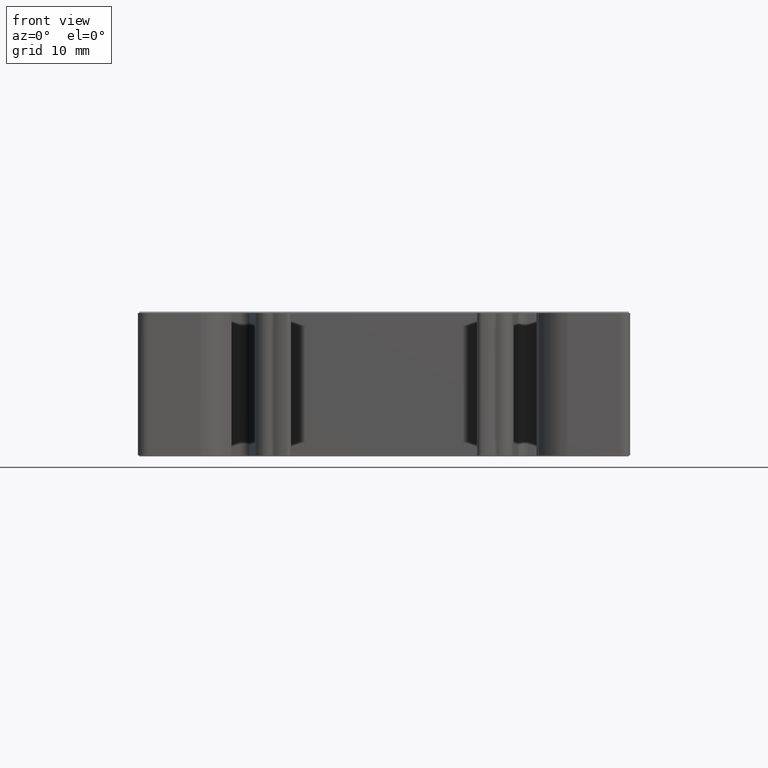
[diagram: clean part render]
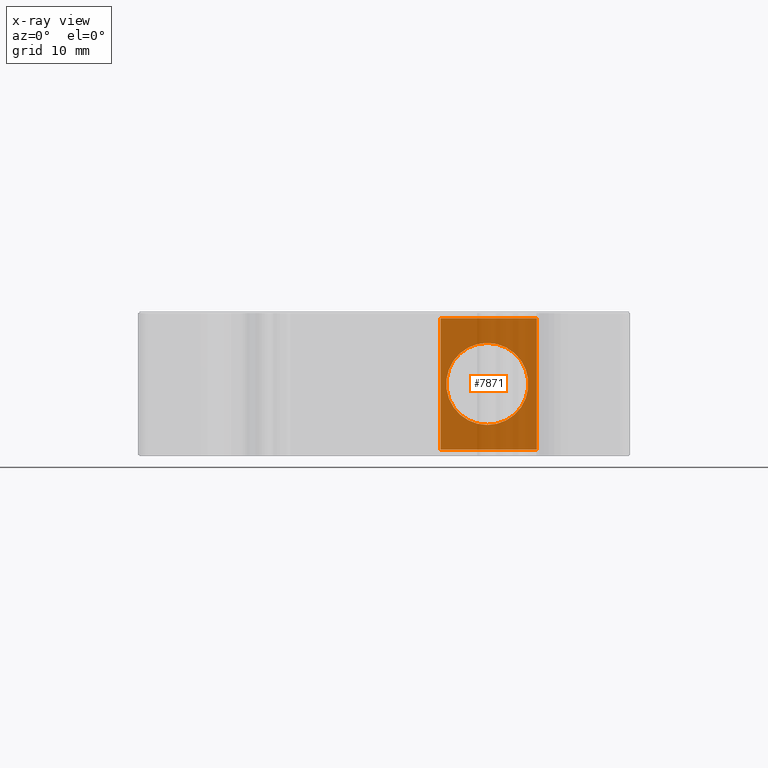
[diagram: x-ray — body ghosted, one internal face saturated and labeled with its STEP entity id]
A machine part, front view, then the same camera in x-ray: the body is ghosted and one INTERNAL B-rep face — a face not visible from any outside direction — is saturated and labeled: STEP entity #7871.
In plain terms, the highlighted planar face has unit normal (0, 1, -0).
Its self-contained STEP definition (entity closure, byte-faithful):
#430 = ORIENTED_EDGE ( 'NONE', *, *, #20068, .F. ) ;
#451 = ORIENTED_EDGE ( 'NONE', *, *, #20116, .F. ) ;
#477 = ORIENTED_EDGE ( 'NONE', *, *, #20141, .T. ) ;
#483 = ORIENTED_EDGE ( 'NONE', *, *, #20151, .T. ) ;
#491 = ORIENTED_EDGE ( 'NONE', *, *, #20049, .T. ) ;
#516 = ORIENTED_EDGE ( 'NONE', *, *, #20125, .F. ) ;
#1850 = CARTESIAN_POINT ( 'NONE',  ( -291.5938850279080200, 320.3291183522195000, -26.34572616096825100 ) ) ;
#1856 = PLANE ( 'NONE',  #20463 ) ;
#1859 = FACE_BOUND ( 'NONE', #15999, .T. ) ;
#1862 = FACE_OUTER_BOUND ( 'NONE', #15982, .T. ) ;
#1866 = DIRECTION ( 'NONE',  ( 4.160806330053850200E-027, 1.000000000000000000, -4.089659118477320100E-014 ) ) ;
#1872 = DIRECTION ( 'NONE',  ( 0.0000000000000000000, 4.089659118477320100E-014, 1.000000000000000000 ) ) ;
#6209 = VERTEX_POINT ( 'NONE', #17655 ) ;
#6228 = VERTEX_POINT ( 'NONE', #17648 ) ;
#6257 = VERTEX_POINT ( 'NONE', #17658 ) ;
#6259 = VERTEX_POINT ( 'NONE', #17718 ) ;
#6261 = VERTEX_POINT ( 'NONE', #17743 ) ;
#6262 = VERTEX_POINT ( 'NONE', #17747 ) ;
#7871 = ADVANCED_FACE ( 'NONE', ( #1859, #1862 ), #1856, .T. ) ;
#8717 = VECTOR ( 'NONE', #14240, 1000.000000000000000 ) ;
#8719 = AXIS2_PLACEMENT_3D ( 'NONE', #14282, #14293, #14255 ) ;
#8740 = CIRCLE ( 'NONE', #8719, 4.250006793215243700 ) ;
#8778 = VECTOR ( 'NONE', #14460, 1000.000000000000000 ) ;
#8784 = VECTOR ( 'NONE', #14546, 1000.000000000000000 ) ;
#8788 = AXIS2_PLACEMENT_3D ( 'NONE', #14438, #14396, #14398 ) ;
#8810 = CIRCLE ( 'NONE', #8788, 4.250006793215243700 ) ;
#8827 = VECTOR ( 'NONE', #14608, 1000.000000000000000 ) ;
#14212 = LINE ( 'NONE', #14247, #8717 ) ;
#14240 = DIRECTION ( 'NONE',  ( -1.000000000000000000, 1.024298263125512200E-027, -7.669363083972959900E-014 ) ) ;
#14247 = CARTESIAN_POINT ( 'NONE',  ( -291.5938850279019900, 320.3291183522164800, -105.0880507515652100 ) ) ;
#14255 = DIRECTION ( 'NONE',  ( 0.0000000000000000000, 3.918427941330099900E-014, 1.000000000000000000 ) ) ;
#14282 = CARTESIAN_POINT ( 'NONE',  ( -296.7193071656955100, 320.3291183522164800, -98.29017196370020300 ) ) ;
#14293 = DIRECTION ( 'NONE',  ( 4.160806330053850200E-027, 1.000000000000000000, -4.089659118477320100E-014 ) ) ;
#14396 = DIRECTION ( 'NONE',  ( 4.160806330053850200E-027, 1.000000000000000000, -4.089659118477320100E-014 ) ) ;
#14398 = DIRECTION ( 'NONE',  ( 0.0000000000000000000, 3.918427941330099900E-014, 1.000000000000000000 ) ) ;
#14438 = CARTESIAN_POINT ( 'NONE',  ( -296.7193071656955100, 320.3291183522164800, -98.29017196370020300 ) ) ;
#14460 = DIRECTION ( 'NONE',  ( 1.024210827134004000E-013, -4.089659118477320100E-014, -1.000000000000000000 ) ) ;
#14488 = LINE ( 'NONE', #14493, #8778 ) ;
#14493 = CARTESIAN_POINT ( 'NONE',  ( -301.5514399761110000, 320.3291183522195000, -26.34572616096925300 ) ) ;
#14529 = CARTESIAN_POINT ( 'NONE',  ( -291.5938850279064800, 320.3291183522169900, -91.49229317583478900 ) ) ;
#14541 = LINE ( 'NONE', #14570, #8784 ) ;
#14546 = DIRECTION ( 'NONE',  ( 1.024210827134004000E-013, -4.089659118477320100E-014, -1.000000000000000000 ) ) ;
#14553 = LINE ( 'NONE', #14529, #8827 ) ;
#14570 = CARTESIAN_POINT ( 'NONE',  ( -291.5938850279080200, 320.3291183522195000, -26.34572616096825100 ) ) ;
#14608 = DIRECTION ( 'NONE',  ( 1.000000000000000000, -3.108641248550410100E-027, 2.572745187367075000E-014 ) ) ;
#15982 = EDGE_LOOP ( 'NONE', ( #516, #483, #477, #491 ) ) ;
#15999 = EDGE_LOOP ( 'NONE', ( #430, #451 ) ) ;
#17648 = CARTESIAN_POINT ( 'NONE',  ( -296.7193071656955100, 320.3291183522166500, -94.04016517048495400 ) ) ;
#17655 = CARTESIAN_POINT ( 'NONE',  ( -296.7193071656950600, 320.3291183522163100, -102.5401787569154400 ) ) ;
#17658 = CARTESIAN_POINT ( 'NONE',  ( -301.5514399761039500, 320.3291183522169900, -91.49229317583510100 ) ) ;
#17718 = CARTESIAN_POINT ( 'NONE',  ( -291.5938850279000000, 320.3291183522164800, -105.0880507515652100 ) ) ;
#17743 = CARTESIAN_POINT ( 'NONE',  ( -291.5938850279015400, 320.3291183522164800, -91.49229317583478900 ) ) ;
#17747 = CARTESIAN_POINT ( 'NONE',  ( -301.5514399761039500, 320.3291183522164800, -105.0880507515660000 ) ) ;
#20049 = EDGE_CURVE ( 'NONE', #6259, #6262, #14212, .T. ) ;
#20068 = EDGE_CURVE ( 'NONE', #6228, #6209, #8740, .T. ) ;
#20116 = EDGE_CURVE ( 'NONE', #6209, #6228, #8810, .T. ) ;
#20125 = EDGE_CURVE ( 'NONE', #6257, #6262, #14488, .T. ) ;
#20141 = EDGE_CURVE ( 'NONE', #6261, #6259, #14541, .T. ) ;
#20151 = EDGE_CURVE ( 'NONE', #6257, #6261, #14553, .T. ) ;
#20463 = AXIS2_PLACEMENT_3D ( 'NONE', #1850, #1866, #1872 ) ;